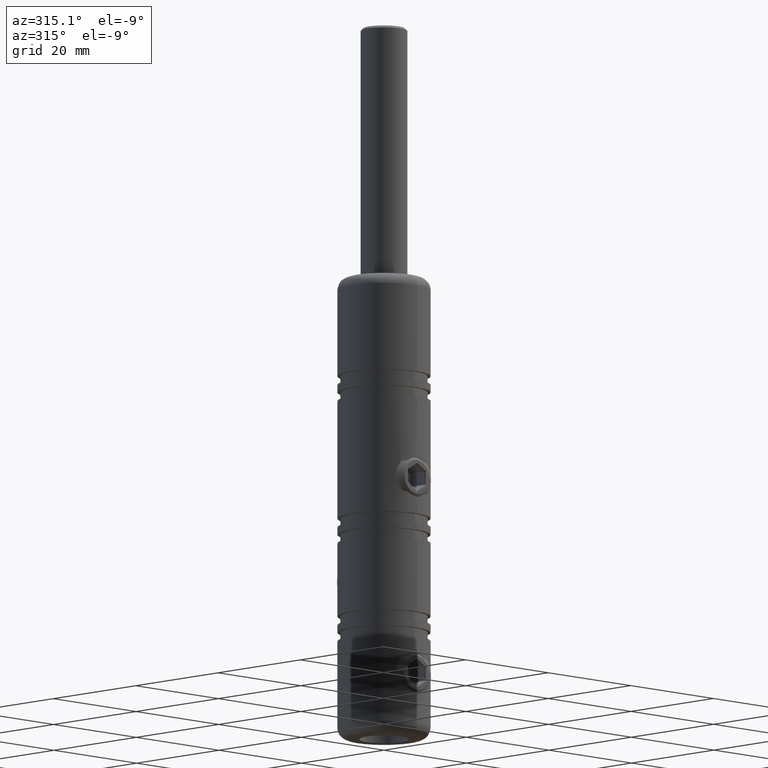
[diagram: clean part render]
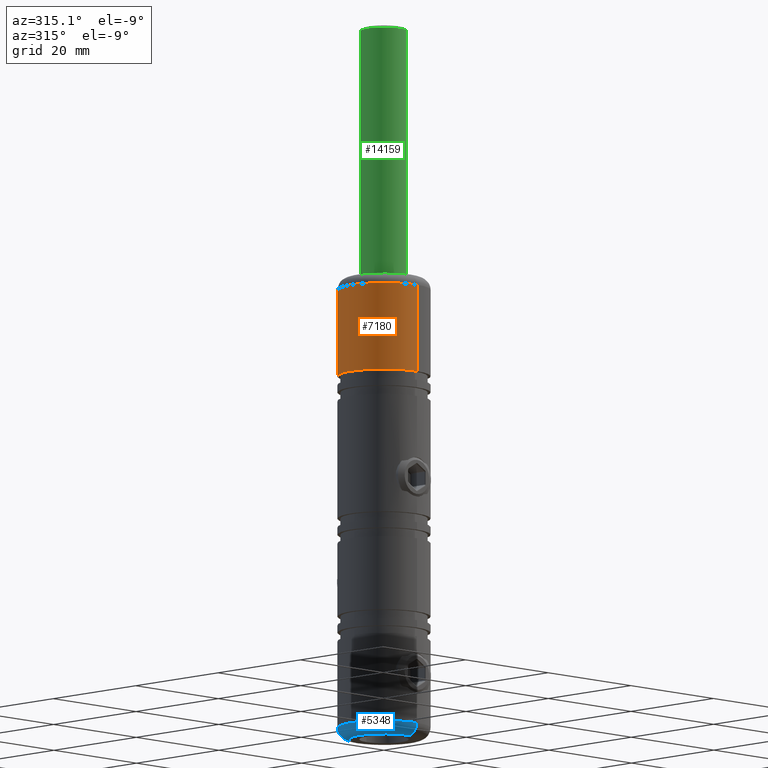
[diagram: same view with three faces highlighted in distinct colors, each labeled with its STEP entity id]
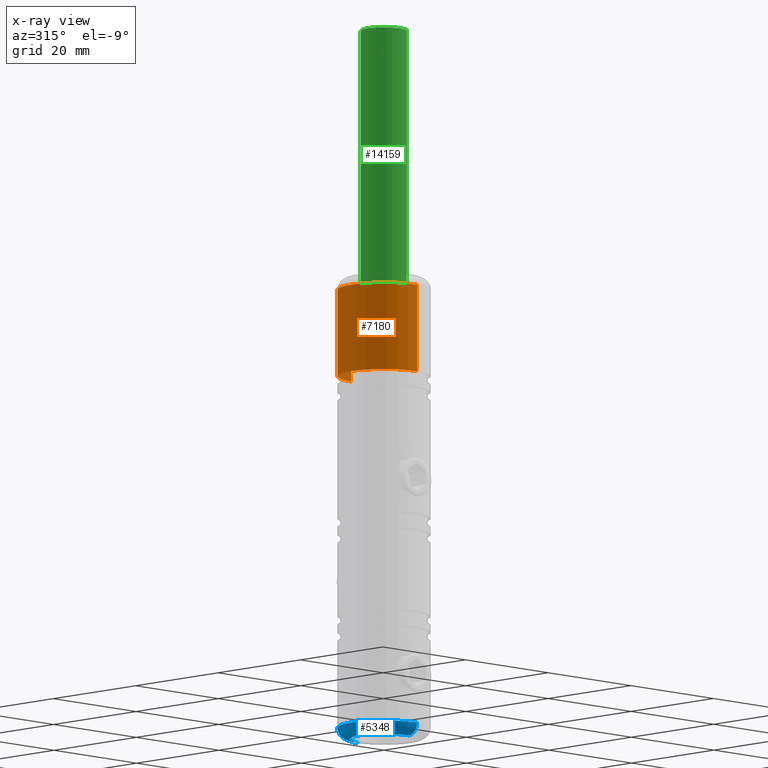
[diagram: x-ray of the same camera — body ghosted, the three highlighted faces saturated]
A machine part, auxiliary view with three faces highlighted in distinct colors.
The next image is the same camera in x-ray (body ghosted, the three faces saturated) — at least one of them is partly hidden behind the body in this view.
Their STEP definitions:

[orange] entity #7180 — the highlighted cylindrical surface (partial cylindrical patch) has radius 8 mm, axis along (0, 0, 1).
#195 = CARTESIAN_POINT ( 'NONE',  ( 0.0000000000000000000, -1.006841222138839500E-015, 23.00000000000000400 ) ) ;
#664 = AXIS2_PLACEMENT_3D ( 'NONE', #195, #1530, #13671 ) ;
#1219 = CARTESIAN_POINT ( 'NONE',  ( 9.797174393178813800E-016, 7.999999999999989300, 40.00000000000000000 ) ) ;
#1411 = EDGE_CURVE ( 'NONE', #13195, #12257, #2977, .T. ) ;
#1530 = DIRECTION ( 'NONE',  ( -0.0000000000000000000, 5.922595424346115800E-017, 1.000000000000000000 ) ) ;
#1639 = DIRECTION ( 'NONE',  ( 0.0000000000000000000, -5.922595424346115800E-017, -1.000000000000000000 ) ) ;
#2113 = VERTEX_POINT ( 'NONE', #9887 ) ;
#2208 = CARTESIAN_POINT ( 'NONE',  ( 0.0000000000000000000, -7.999999999999989300, 38.00000000000000000 ) ) ;
#2267 = DIRECTION ( 'NONE',  ( -0.0000000000000000000, 5.922595424346115800E-017, 1.000000000000000000 ) ) ;
#2626 = CARTESIAN_POINT ( 'NONE',  ( 0.0000000000000000000, -7.999999999999983100, 23.00000000000000400 ) ) ;
#2977 = CIRCLE ( 'NONE', #11578, 7.999999999999989300 ) ;
#3865 = LINE ( 'NONE', #1219, #5777 ) ;
#4271 = EDGE_LOOP ( 'NONE', ( #15555, #16221, #5898, #8116 ) ) ;
#4887 = EDGE_CURVE ( 'NONE', #2113, #8814, #9204, .T. ) ;
#5613 = LINE ( 'NONE', #13050, #7053 ) ;
#5777 = VECTOR ( 'NONE', #16037, 1000.000000000000000 ) ;
#5898 = ORIENTED_EDGE ( 'NONE', *, *, #10723, .T. ) ;
#7010 = DIRECTION ( 'NONE',  ( 0.0000000000000000000, 1.000000000000000000, 0.0000000000000000000 ) ) ;
#7053 = VECTOR ( 'NONE', #17454, 1000.000000000000000 ) ;
#7180 = ADVANCED_FACE ( 'NONE', ( #12746 ), #16370, .T. ) ;
#8116 = ORIENTED_EDGE ( 'NONE', *, *, #1411, .T. ) ;
#8814 = VERTEX_POINT ( 'NONE', #2626 ) ;
#9204 = CIRCLE ( 'NONE', #664, 7.999999999999981300 ) ;
#9887 = CARTESIAN_POINT ( 'NONE',  ( 9.797174393178809900E-016, 7.999999999999979600, 23.00000000000000400 ) ) ;
#10391 = AXIS2_PLACEMENT_3D ( 'NONE', #12931, #2267, #11671 ) ;
#10723 = EDGE_CURVE ( 'NONE', #8814, #13195, #5613, .T. ) ;
#11578 = AXIS2_PLACEMENT_3D ( 'NONE', #15157, #1639, #7010 ) ;
#11671 = DIRECTION ( 'NONE',  ( 0.0000000000000000000, -1.000000000000000000, 0.0000000000000000000 ) ) ;
#12257 = VERTEX_POINT ( 'NONE', #14353 ) ;
#12746 = FACE_OUTER_BOUND ( 'NONE', #4271, .T. ) ;
#12931 = CARTESIAN_POINT ( 'NONE',  ( 0.0000000000000000000, 0.0000000000000000000, 40.00000000000000000 ) ) ;
#13050 = CARTESIAN_POINT ( 'NONE',  ( 0.0000000000000000000, -7.999999999999989300, 40.00000000000000000 ) ) ;
#13195 = VERTEX_POINT ( 'NONE', #2208 ) ;
#13276 = EDGE_CURVE ( 'NONE', #2113, #12257, #3865, .T. ) ;
#13671 = DIRECTION ( 'NONE',  ( 0.0000000000000000000, -1.000000000000000000, 0.0000000000000000000 ) ) ;
#14353 = CARTESIAN_POINT ( 'NONE',  ( 9.797174393178813800E-016, 7.999999999999989300, 38.00000000000000000 ) ) ;
#15157 = CARTESIAN_POINT ( 'NONE',  ( 0.0000000000000000000, -1.184519084869224400E-016, 38.00000000000000000 ) ) ;
#15555 = ORIENTED_EDGE ( 'NONE', *, *, #13276, .F. ) ;
#16037 = DIRECTION ( 'NONE',  ( -0.0000000000000000000, 5.922595424346115800E-017, 1.000000000000000000 ) ) ;
#16221 = ORIENTED_EDGE ( 'NONE', *, *, #4887, .T. ) ;
#16370 = CYLINDRICAL_SURFACE ( 'NONE', #10391, 7.999999999999989300 ) ;
#17454 = DIRECTION ( 'NONE',  ( -0.0000000000000000000, 5.922595424346115800E-017, 1.000000000000000000 ) ) ;

[blue] entity #5348 — the highlighted toroidal blend (fillet) surface has major radius 6 mm and minor (blend) radius 2 mm.
#630 = ORIENTED_EDGE ( 'NONE', *, *, #7243, .F. ) ;
#832 = CIRCLE ( 'NONE', #12167, 5.999999999999996400 ) ;
#1202 = VERTEX_POINT ( 'NONE', #2194 ) ;
#2041 = EDGE_LOOP ( 'NONE', ( #630, #5970, #4376, #14184 ) ) ;
#2194 = CARTESIAN_POINT ( 'NONE',  ( 9.797174393178821700E-016, 7.999999999999991100, -38.00000000000000000 ) ) ;
#2253 = EDGE_CURVE ( 'NONE', #15435, #3409, #832, .T. ) ;
#2837 = AXIS2_PLACEMENT_3D ( 'NONE', #11324, #4561, #9960 ) ;
#3203 = DIRECTION ( 'NONE',  ( 0.0000000000000000000, -1.000000000000000000, 5.922595424346115800E-017 ) ) ;
#3409 = VERTEX_POINT ( 'NONE', #7342 ) ;
#3917 = DIRECTION ( 'NONE',  ( 0.0000000000000000000, 0.0000000000000000000, 1.000000000000000000 ) ) ;
#3928 = DIRECTION ( 'NONE',  ( 1.000000000000000000, -1.224646799147353200E-016, 7.253087529070231300E-033 ) ) ;
#4364 = EDGE_CURVE ( 'NONE', #1202, #14943, #16418, .T. ) ;
#4376 = ORIENTED_EDGE ( 'NONE', *, *, #15885, .T. ) ;
#4561 = DIRECTION ( 'NONE',  ( -0.0000000000000000000, 5.922595424346115800E-017, 1.000000000000000000 ) ) ;
#5212 = AXIS2_PLACEMENT_3D ( 'NONE', #6870, #11026, #3203 ) ;
#5348 = ADVANCED_FACE ( 'NONE', ( #12159 ), #15341, .T. ) ;
#5530 = DIRECTION ( 'NONE',  ( -1.000000000000000000, -0.0000000000000000000, 0.0000000000000000000 ) ) ;
#5970 = ORIENTED_EDGE ( 'NONE', *, *, #2253, .F. ) ;
#6016 = CIRCLE ( 'NONE', #12550, 2.000000000000000900 ) ;
#6691 = CARTESIAN_POINT ( 'NONE',  ( 7.347880794884115800E-016, 5.999999999999992000, -38.00000000000000000 ) ) ;
#6800 = CARTESIAN_POINT ( 'NONE',  ( 0.0000000000000000000, -6.000000000000000900, -38.00000000000000000 ) ) ;
#6870 = CARTESIAN_POINT ( 'NONE',  ( 0.0000000000000000000, -4.619624430989970600E-015, -38.00000000000000000 ) ) ;
#7043 = CARTESIAN_POINT ( 'NONE',  ( 0.0000000000000000000, -8.000000000000001800, -38.00000000000000000 ) ) ;
#7243 = EDGE_CURVE ( 'NONE', #3409, #1202, #6016, .T. ) ;
#7342 = CARTESIAN_POINT ( 'NONE',  ( 8.572527594031469200E-016, 5.999999999999992000, -40.00000000000000000 ) ) ;
#7711 = CIRCLE ( 'NONE', #16026, 2.000000000000001800 ) ;
#9960 = DIRECTION ( 'NONE',  ( 0.0000000000000000000, -1.000000000000000000, 0.0000000000000000000 ) ) ;
#10934 = CARTESIAN_POINT ( 'NONE',  ( 0.0000000000000000000, -4.738076339476893500E-015, -40.00000000000000000 ) ) ;
#11026 = DIRECTION ( 'NONE',  ( -0.0000000000000000000, 5.922595424346115800E-017, 1.000000000000000000 ) ) ;
#11324 = CARTESIAN_POINT ( 'NONE',  ( 0.0000000000000000000, -4.619624430989970600E-015, -38.00000000000000000 ) ) ;
#12159 = FACE_OUTER_BOUND ( 'NONE', #2041, .T. ) ;
#12167 = AXIS2_PLACEMENT_3D ( 'NONE', #10934, #14929, #12310 ) ;
#12310 = DIRECTION ( 'NONE',  ( 0.0000000000000000000, -1.000000000000000000, 0.0000000000000000000 ) ) ;
#12378 = CARTESIAN_POINT ( 'NONE',  ( 0.0000000000000000000, -6.000000000000000900, -40.00000000000000000 ) ) ;
#12550 = AXIS2_PLACEMENT_3D ( 'NONE', #6691, #3928, #14717 ) ;
#14184 = ORIENTED_EDGE ( 'NONE', *, *, #4364, .F. ) ;
#14717 = DIRECTION ( 'NONE',  ( 1.224646799147352500E-016, 1.000000000000000000, 0.0000000000000000000 ) ) ;
#14929 = DIRECTION ( 'NONE',  ( 0.0000000000000000000, -5.922595424346115800E-017, -1.000000000000000000 ) ) ;
#14943 = VERTEX_POINT ( 'NONE', #7043 ) ;
#15341 = TOROIDAL_SURFACE ( 'NONE', #5212, 5.999999999999996400, 2.000000000000000000 ) ;
#15435 = VERTEX_POINT ( 'NONE', #12378 ) ;
#15885 = EDGE_CURVE ( 'NONE', #15435, #14943, #7711, .T. ) ;
#16026 = AXIS2_PLACEMENT_3D ( 'NONE', #6800, #5530, #3917 ) ;
#16418 = CIRCLE ( 'NONE', #2837, 7.999999999999996400 ) ;

[green] entity #14159 — the highlighted cylindrical surface (edge-blend (fillet) strip) has radius 4 mm, axis along (0, 0, 1).
#56 = ORIENTED_EDGE ( 'NONE', *, *, #178, .T. ) ;
#178 = EDGE_CURVE ( 'NONE', #5723, #15684, #9907, .T. ) ;
#363 = DIRECTION ( 'NONE',  ( 0.0000000000000000000, 0.0000000000000000000, -1.000000000000000000 ) ) ;
#929 = CARTESIAN_POINT ( 'NONE',  ( 3.999999999999985300, 8.881784197001252300E-016, -58.74999999999946000 ) ) ;
#1631 = DIRECTION ( 'NONE',  ( 1.000000000000000000, 2.220446049250321500E-016, 0.0000000000000000000 ) ) ;
#2111 = EDGE_CURVE ( 'NONE', #5723, #8899, #8213, .T. ) ;
#2312 = EDGE_LOOP ( 'NONE', ( #3154, #56, #2564, #6004 ) ) ;
#2428 = LINE ( 'NONE', #7083, #9517 ) ;
#2564 = ORIENTED_EDGE ( 'NONE', *, *, #8904, .T. ) ;
#2730 = AXIS2_PLACEMENT_3D ( 'NONE', #8421, #363, #11347 ) ;
#2952 = DIRECTION ( 'NONE',  ( 1.000000000000000000, 2.220446049250321500E-016, 0.0000000000000000000 ) ) ;
#3154 = ORIENTED_EDGE ( 'NONE', *, *, #2111, .F. ) ;
#3841 = DIRECTION ( 'NONE',  ( 0.0000000000000000000, 0.0000000000000000000, 1.000000000000000000 ) ) ;
#4155 = AXIS2_PLACEMENT_3D ( 'NONE', #5782, #7159, #2952 ) ;
#4331 = DIRECTION ( 'NONE',  ( 0.0000000000000000000, 0.0000000000000000000, 1.000000000000000000 ) ) ;
#4620 = VECTOR ( 'NONE', #3841, 1000.000000000000000 ) ;
#4985 = CARTESIAN_POINT ( 'NONE',  ( -4.000000000000000000, -3.983197000411929700E-016, -58.74999999999946000 ) ) ;
#5723 = VERTEX_POINT ( 'NONE', #4985 ) ;
#5782 = CARTESIAN_POINT ( 'NONE',  ( 0.0000000000000000000, 0.0000000000000000000, -58.74999999999946000 ) ) ;
#6004 = ORIENTED_EDGE ( 'NONE', *, *, #6680, .T. ) ;
#6680 = EDGE_CURVE ( 'NONE', #12446, #8899, #15517, .T. ) ;
#7083 = CARTESIAN_POINT ( 'NONE',  ( 3.999999999999985300, 8.881784197001252300E-016, 0.0000000000000000000 ) ) ;
#7110 = CYLINDRICAL_SURFACE ( 'NONE', #11441, 3.999999999999985300 ) ;
#7159 = DIRECTION ( 'NONE',  ( 0.0000000000000000000, 0.0000000000000000000, 1.000000000000000000 ) ) ;
#8213 = LINE ( 'NONE', #12011, #4620 ) ;
#8264 = CARTESIAN_POINT ( 'NONE',  ( -4.000000000000000000, -3.983197000411929700E-016, -0.3999999999999975800 ) ) ;
#8421 = CARTESIAN_POINT ( 'NONE',  ( 0.0000000000000000000, 0.0000000000000000000, -0.3999999999999975800 ) ) ;
#8899 = VERTEX_POINT ( 'NONE', #8264 ) ;
#8904 = EDGE_CURVE ( 'NONE', #15684, #12446, #2428, .T. ) ;
#9517 = VECTOR ( 'NONE', #4331, 1000.000000000000000 ) ;
#9695 = CARTESIAN_POINT ( 'NONE',  ( 0.0000000000000000000, 0.0000000000000000000, 0.0000000000000000000 ) ) ;
#9907 = CIRCLE ( 'NONE', #4155, 3.999999999999985300 ) ;
#11347 = DIRECTION ( 'NONE',  ( -1.000000000000000000, -2.220446049250321500E-016, 0.0000000000000000000 ) ) ;
#11441 = AXIS2_PLACEMENT_3D ( 'NONE', #9695, #12464, #1631 ) ;
#12011 = CARTESIAN_POINT ( 'NONE',  ( -3.999999999999985300, -3.983197000411914400E-016, 0.0000000000000000000 ) ) ;
#12169 = FACE_OUTER_BOUND ( 'NONE', #2312, .T. ) ;
#12402 = CARTESIAN_POINT ( 'NONE',  ( 4.000000000000000000, 8.881784197001285800E-016, -0.3999999999999975800 ) ) ;
#12446 = VERTEX_POINT ( 'NONE', #12402 ) ;
#12464 = DIRECTION ( 'NONE',  ( 0.0000000000000000000, 0.0000000000000000000, 1.000000000000000000 ) ) ;
#14159 = ADVANCED_FACE ( 'NONE', ( #12169 ), #7110, .T. ) ;
#15517 = CIRCLE ( 'NONE', #2730, 3.999999999999985300 ) ;
#15684 = VERTEX_POINT ( 'NONE', #929 ) ;